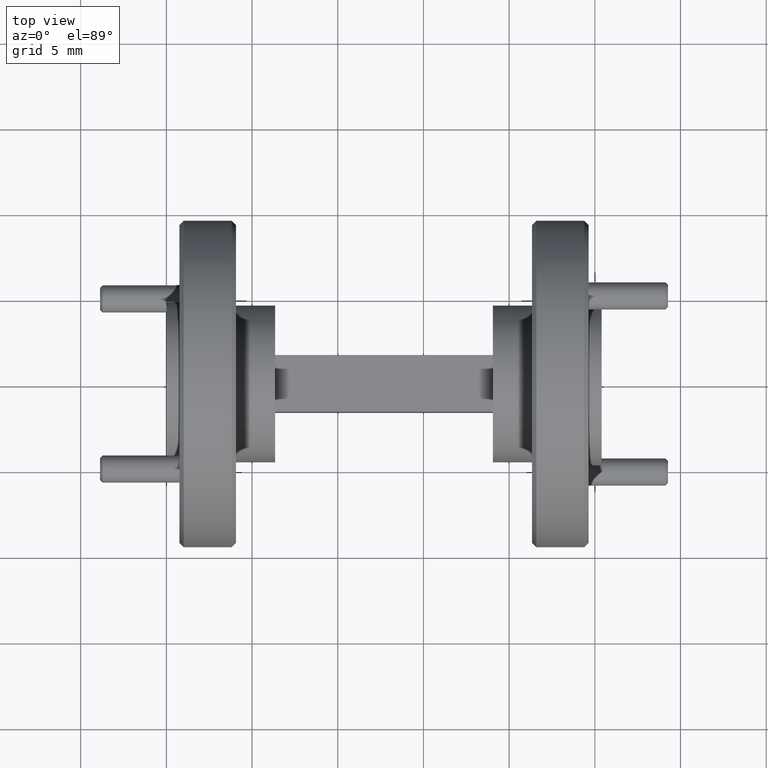
[diagram: clean part render]
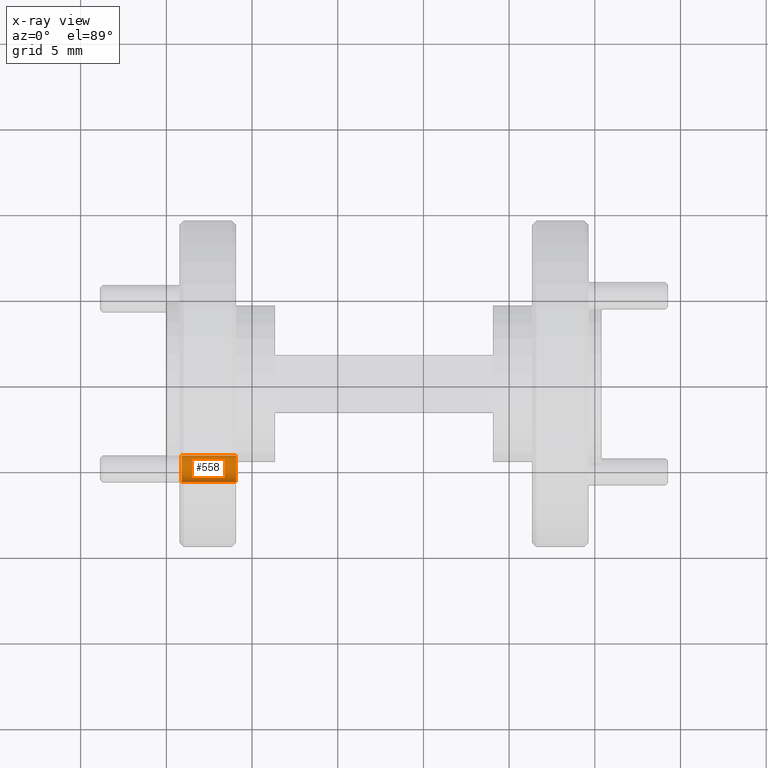
[diagram: x-ray — body ghosted, one internal face saturated and labeled with its STEP entity id]
A machine part, top view, then the same camera in x-ray: the body is ghosted and one INTERNAL B-rep face — a face not visible from any outside direction — is saturated and labeled: STEP entity #558.
In plain terms, the highlighted cylindrical surface (edge-blend (fillet) strip) has radius 0.781 mm, axis along (-1, -0, -0).
Its self-contained STEP definition (entity closure, byte-faithful):
#7 = ORIENTED_EDGE ( 'NONE', *, *, #1872, .T. ) ;
#190 = CYLINDRICAL_SURFACE ( 'NONE', #2385, 0.03074999999999997200 ) ;
#243 = VERTEX_POINT ( 'NONE', #768 ) ;
#293 = CARTESIAN_POINT ( 'NONE',  ( 0.03500000000000003800, -0.1988737822087164000, 0.1988737822087165400 ) ) ;
#468 = EDGE_CURVE ( 'NONE', #1997, #243, #1475, .T. ) ;
#507 = AXIS2_PLACEMENT_3D ( 'NONE', #293, #2294, #2984 ) ;
#558 = ADVANCED_FACE ( 'NONE', ( #2861 ), #190, .F. ) ;
#612 = DIRECTION ( 'NONE',  ( -1.000000000000000000, -1.224646799147353500E-016, -0.0000000000000000000 ) ) ;
#768 = CARTESIAN_POINT ( 'NONE',  ( 0.03500000000000003800, -0.1988737822087164000, 0.1681237822087165700 ) ) ;
#914 = LINE ( 'NONE', #2200, #1927 ) ;
#967 = CIRCLE ( 'NONE', #2249, 0.03074999999999997200 ) ;
#1025 = AXIS2_PLACEMENT_3D ( 'NONE', #1328, #1348, #1302 ) ;
#1201 = CARTESIAN_POINT ( 'NONE',  ( 0.03500000000000003800, -0.2296237822087163800, 0.1988737822087165400 ) ) ;
#1302 = DIRECTION ( 'NONE',  ( 0.0000000000000000000, 0.0000000000000000000, 1.000000000000000000 ) ) ;
#1328 = CARTESIAN_POINT ( 'NONE',  ( 0.03500000000000003800, -0.1988737822087164000, 0.1988737822087165400 ) ) ;
#1348 = DIRECTION ( 'NONE',  ( -1.000000000000000000, 0.0000000000000000000, 0.0000000000000000000 ) ) ;
#1400 = VECTOR ( 'NONE', #612, 39.37007874015748100 ) ;
#1429 = VERTEX_POINT ( 'NONE', #1201 ) ;
#1475 = CIRCLE ( 'NONE', #507, 0.03074999999999997200 ) ;
#1513 = ORIENTED_EDGE ( 'NONE', *, *, #2006, .T. ) ;
#1563 = LINE ( 'NONE', #1925, #1400 ) ;
#1872 = EDGE_CURVE ( 'NONE', #4045, #2550, #967, .T. ) ;
#1925 = CARTESIAN_POINT ( 'NONE',  ( 0.9658650070512057000, -0.1681237822087163500, 0.1988737822087165400 ) ) ;
#1927 = VECTOR ( 'NONE', #3825, 39.37007874015748100 ) ;
#1997 = VERTEX_POINT ( 'NONE', #2568 ) ;
#2006 = EDGE_CURVE ( 'NONE', #2550, #1997, #1563, .T. ) ;
#2078 = EDGE_CURVE ( 'NONE', #4045, #1429, #914, .T. ) ;
#2200 = CARTESIAN_POINT ( 'NONE',  ( 0.9658650070512057000, -0.2296237822087162900, 0.1988737822087165400 ) ) ;
#2249 = AXIS2_PLACEMENT_3D ( 'NONE', #3784, #4124, #3132 ) ;
#2294 = DIRECTION ( 'NONE',  ( -1.000000000000000000, 0.0000000000000000000, 0.0000000000000000000 ) ) ;
#2385 = AXIS2_PLACEMENT_3D ( 'NONE', #4275, #4332, #3302 ) ;
#2517 = CIRCLE ( 'NONE', #1025, 0.03074999999999997200 ) ;
#2550 = VERTEX_POINT ( 'NONE', #3547 ) ;
#2568 = CARTESIAN_POINT ( 'NONE',  ( 0.03500000000000003800, -0.1681237822087164300, 0.1988737822087165400 ) ) ;
#2579 = EDGE_CURVE ( 'NONE', #243, #1429, #2517, .T. ) ;
#2861 = FACE_OUTER_BOUND ( 'NONE', #4002, .T. ) ;
#2984 = DIRECTION ( 'NONE',  ( 0.0000000000000000000, 0.0000000000000000000, 1.000000000000000000 ) ) ;
#3057 = ORIENTED_EDGE ( 'NONE', *, *, #468, .T. ) ;
#3132 = DIRECTION ( 'NONE',  ( 0.0000000000000000000, 1.000000000000000000, 0.0000000000000000000 ) ) ;
#3284 = ORIENTED_EDGE ( 'NONE', *, *, #2579, .T. ) ;
#3302 = DIRECTION ( 'NONE',  ( 0.0000000000000000000, -1.000000000000000000, 0.0000000000000000000 ) ) ;
#3497 = ORIENTED_EDGE ( 'NONE', *, *, #2078, .F. ) ;
#3547 = CARTESIAN_POINT ( 'NONE',  ( 0.1600000000000000600, -0.1681237822087164300, 0.1988737822087165400 ) ) ;
#3784 = CARTESIAN_POINT ( 'NONE',  ( 0.1600000000000000600, -0.1988737822087164000, 0.1988737822087165400 ) ) ;
#3825 = DIRECTION ( 'NONE',  ( -1.000000000000000000, -1.224646799147353500E-016, -0.0000000000000000000 ) ) ;
#4002 = EDGE_LOOP ( 'NONE', ( #7, #1513, #3057, #3284, #3497 ) ) ;
#4045 = VERTEX_POINT ( 'NONE', #4108 ) ;
#4108 = CARTESIAN_POINT ( 'NONE',  ( 0.1600000000000000600, -0.2296237822087163800, 0.1988737822087165400 ) ) ;
#4124 = DIRECTION ( 'NONE',  ( 1.000000000000000000, 1.224646799147353500E-016, -0.0000000000000000000 ) ) ;
#4275 = CARTESIAN_POINT ( 'NONE',  ( 0.9658650070512057000, -0.1988737822087163200, 0.1988737822087165400 ) ) ;
#4332 = DIRECTION ( 'NONE',  ( -1.000000000000000000, -1.224646799147353500E-016, -0.0000000000000000000 ) ) ;